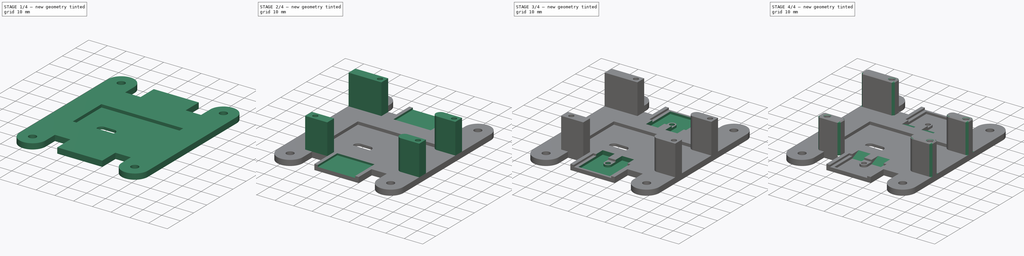
[diagram: build sequence overview — one tinted view per stage of 4, left to right]
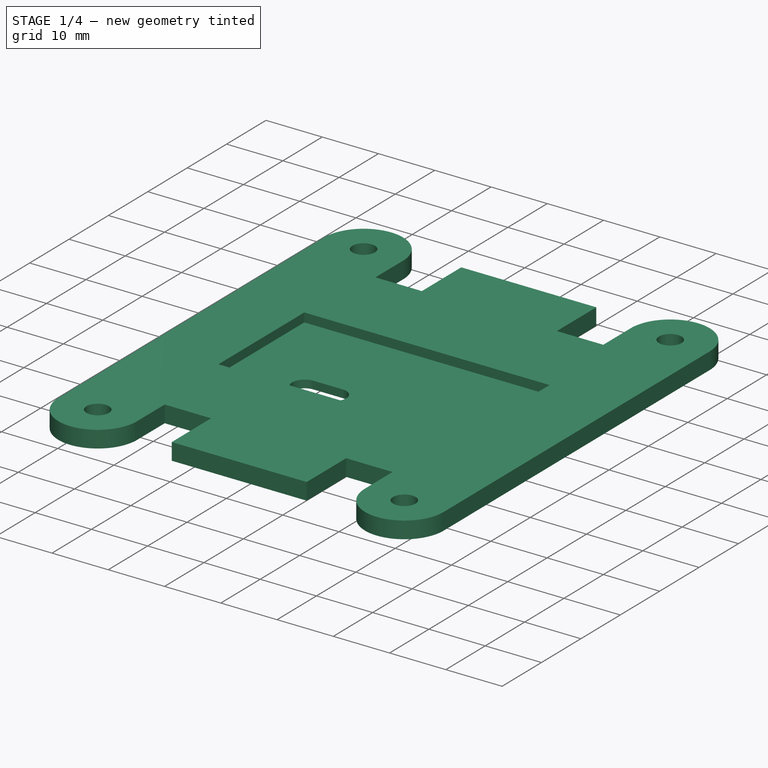
[diagram: stage 1 of 4 — iso view after this stage's code; geometry added in this stage tinted green]
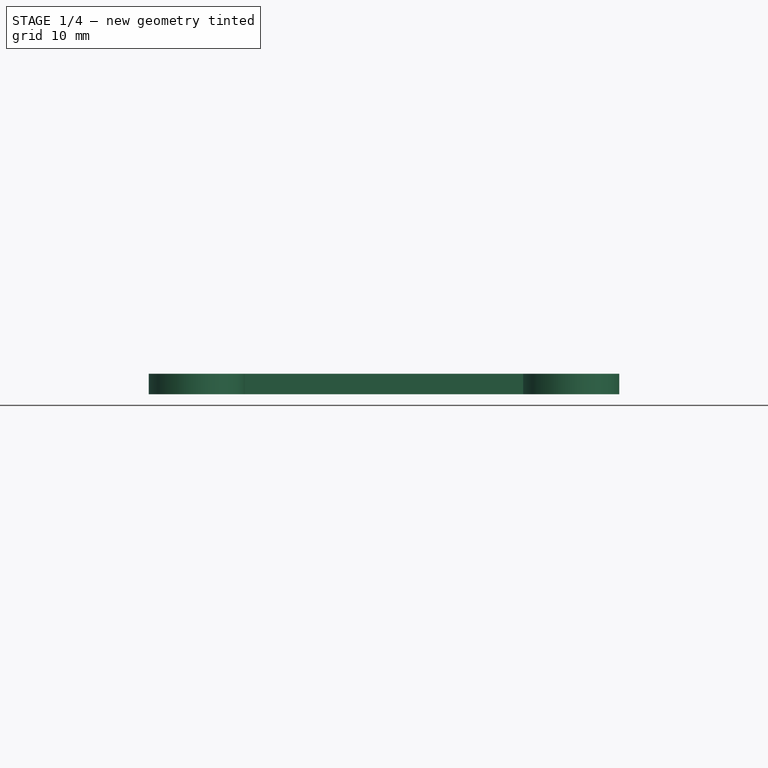
[diagram: stage 1 of 4 — front view after this stage's code; geometry added in this stage tinted green]
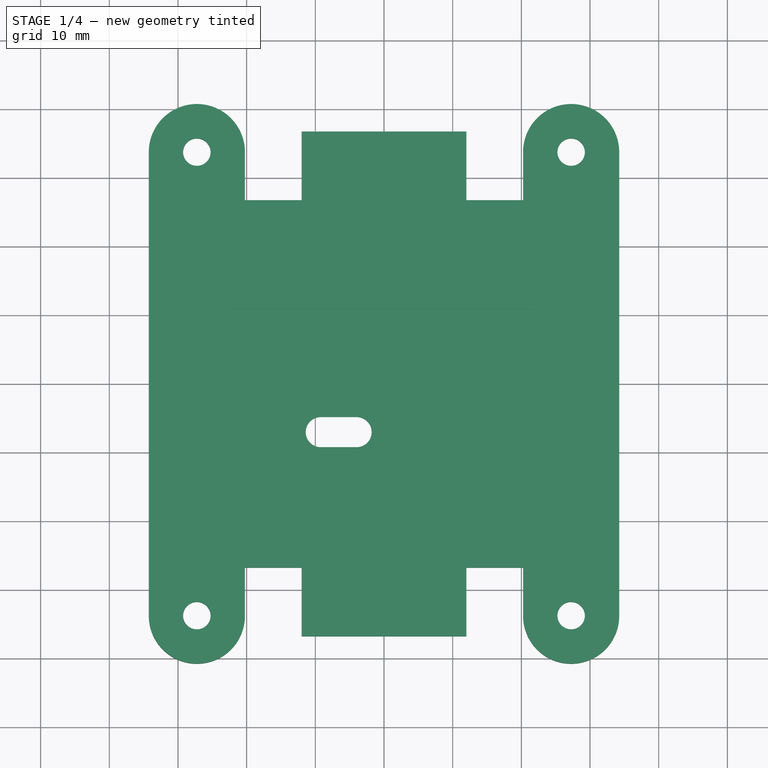
[diagram: stage 1 of 4 — top view after this stage's code; geometry added in this stage tinted green]
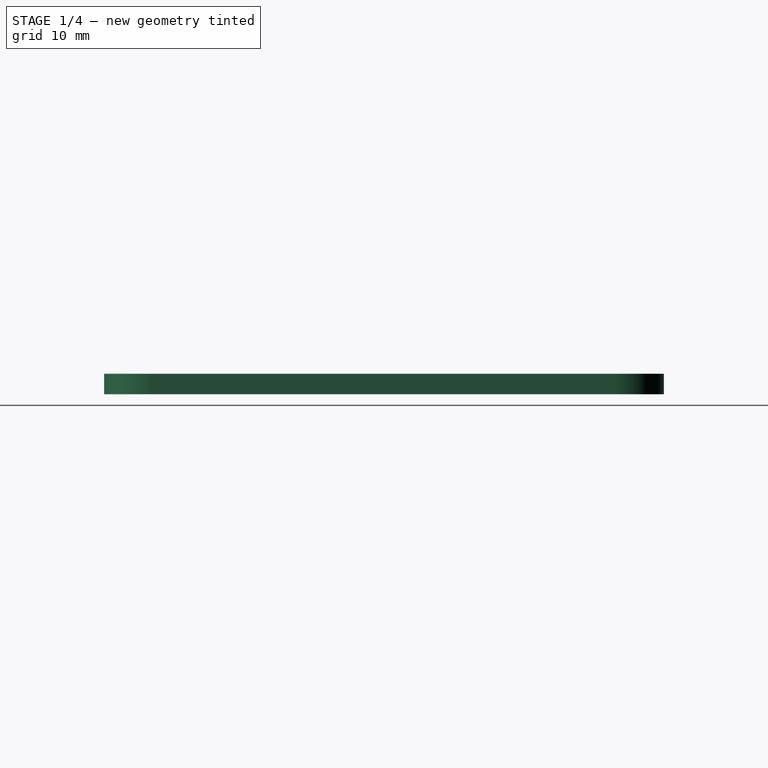
[diagram: stage 1 of 4 — right view after this stage's code; geometry added in this stage tinted green]
FCSTD DOCUMENT  (FreeCAD 0.20R29177 (Git))
Label: _ControllerMount
License: Creative Commons Attribution
LicenseURL: http://creativecommons.org/licenses/by/4.0/
objects: Part::Feature×20, Sketcher::SketchObject×8, App::Part×7, PartDesign::Pocket×5, PartDesign::Chamfer×3, PartDesign::Pad×2, PartDesign::Hole×1, PartDesign::Body×1
note: 51 computed .brp shape members not serialized (recipe doc carries the construction recipe); baked Part::Feature solids carry a one-line shape summary decoded from their .brp

FEATURE [Part::Feature] Part__Feature  label="RawPCB"
  shape: bbox 43.25 x 1.35 x 21.75 mm, 12 faces (baked)
FEATURE [Part::Feature] Part__Feature001  label="PADZ"
  shape: bbox 42.75 x 0.01 x 21.25 mm, 36 faces, 6 solids (baked)
FEATURE [Part::Feature] Part__Feature002  label="PADZ(Mirror)"
  Placement = pos=(0,1.35,0) rot=(1,0,0;3.14159rad)
  shape: bbox 42.75 x 0.01 x 21.25 mm, 36 faces, 6 solids (baked)
FEATURE [Part::Feature] Part__Feature003  label="ScreenPrint"
  shape: bbox 42.64 x 0.01 x 15.24 mm, 178 faces, 14 solids (baked)
FEATURE [App::Part] BarePCB
  Group = -> [Part__Feature,Part__Feature001,Part__Feature002,Part__Feature003]
  Origin = -> Origin001
FEATURE [Part::Feature] Part__Feature004  label="Base"
  Placement = pos=(32.125,0,-0.875) rot=(0,0,1;0rad)
  shape: bbox 8.25 x 1 x 8.25 mm, 8 faces (baked)
FEATURE [Part::Feature] Part__Feature005  label="Can"
  Placement = pos=(32.125,0,-0.875) rot=(0,0,1;0rad)
  shape: bbox 8.859 x 9.25 x 8.859 mm, 6 faces (baked)
FEATURE [App::Part] ElectrolyticCap
  Group = -> [Part__Feature004,Part__Feature005]
  Origin = -> Origin002
FEATURE [Part::Feature] Part__Feature006  label="Inductor"
  Placement = pos=(5.65,-0.2,-0.6) rot=(0,0,1;0rad)
  shape: bbox 12.66 x 7.316 x 12.66 mm, 49 faces (baked)
FEATURE [Part::Feature] Part__Feature007  label="Body001"
  shape: bbox 9.6 x 9.8 x 4.8 mm, 26 faces (baked)
FEATURE [Part::Feature] Part__Feature008  label="Screw"
  shape: bbox 2.25 x 1.5 x 2.25 mm, 7 faces (baked)
FEATURE [App::Part] TrimPot
  Group = -> [Part__Feature007,Part__Feature008]
  Origin = -> Origin003
FEATURE [Part::Feature] Part__Feature009  label="Body (1)"
  Placement = pos=(-4e-16,0,-3.25) rot=(0,0,1;0rad)
  shape: bbox 10 x 4.5 x 9 mm, 6 faces (baked)
FEATURE [Part::Feature] Part__Feature010  label="ThermTab"
  Placement = pos=(-4e-16,0,-3.25) rot=(0,0,1;0rad)
  shape: bbox 10 x 1.5 x 2 mm, 8 faces (baked)
FEATURE [Part::Feature] Part__Feature011  label="Pin"
  shape: bbox 0.8 x 2.5 x 5 mm, 14 faces (baked)
FEATURE [Part::Feature] Part__Feature012  label="Pin001"
  Placement = pos=(2,0,0) rot=(0,0,1;0rad)
  shape: bbox 0.8 x 2.5 x 5 mm, 14 faces (baked)
FEATURE [Part::Feature] Part__Feature013  label="Pin002"
  Placement = pos=(4,0,0) rot=(0,0,1;0rad)
  shape: bbox 0.8 x 2.5 x 5 mm, 14 faces (baked)
FEATURE [Part::Feature] Part__Feature014  label="Pin003"
  Placement = pos=(6,0,0) rot=(0,0,1;0rad)
  shape: bbox 0.8 x 2.5 x 5 mm, 14 faces (baked)
FEATURE [Part::Feature] Part__Feature015  label="Pin004"
  Placement = pos=(8,0,0) rot=(0,0,1;0rad)
  shape: bbox 0.8 x 2.5 x 5 mm, 14 faces (baked)
FEATURE [App::Part] Pins
  Group = -> [Part__Feature011,Part__Feature012,Part__Feature013,Part__Feature014,Part__Feature015]
  Origin = -> Origin004
  Placement = pos=(0.6,0,-3.25) rot=(0,0,1;0rad)
FEATURE [App::Part] Regulator
  Group = -> [Part__Feature009,Part__Feature010,Pins]
  Origin = -> Origin005
FEATURE [Part::Feature] Part__Feature016  label="Diode"
  Placement = pos=(5.35606,0,-0.85) rot=(0,0,1;0rad)
  shape: bbox 4.8 x 2 x 2.7 mm, 18 faces, 3 solids (baked)
FEATURE [Part::Feature] Part__Feature017  label="Base001"
  Placement = pos=(-1.875,-1.35,-0.875) rot=(0,0,1;0rad)
  shape: bbox 8.25 x 1 x 8.25 mm, 8 faces (baked)
FEATURE [Part::Feature] Part__Feature018  label="Can001"
  Placement = pos=(-1.875,-1.35,-0.875) rot=(0,0,1;0rad)
  shape: bbox 8.859 x 9.25 x 8.859 mm, 6 faces (baked)
FEATURE [App::Part] ElectrolyticCap001
  Group = -> [Part__Feature017,Part__Feature018]
  Origin = -> Origin006
  Placement = pos=(1,1.35,0) rot=(0,0,1;0rad)
FEATURE [App::Part] LM2596DCDC_v4  label="LM2596DCDC v4"
  Group = -> [BarePCB,ElectrolyticCap,Part__Feature006,TrimPot,Regulator,Part__Feature016,ElectrolyticCap001]
  Origin = -> Origin007
  Placement = pos=(21.625,10.875,2) rot=(0,0.707107,0.707107;3.14159rad)
FEATURE [Part::Feature] Compound005  label="Arduino UNO Rev.3 (CH340)"
  Placement = pos=(-40.75,28.95,21) rot=(0,0,1;0rad)
  shape: bbox 75.01 x 53.3 x 16.22 mm, 5010 faces, 46 solids (baked)
FEATURE [Sketcher::SketchObject] Sketch
  FullyConstrained = true
  MapMode = 5
  Support = -> [XY_Plane]
  sketch-geometry (24):
    g0: LineSegment StartX=-20.25 StartY=26.75 StartZ=0 EndX=-12 EndY=26.75 EndZ=0
    g1: LineSegment StartX=34.25 StartY=33.75 StartZ=0 EndX=34.25 EndY=-33.75 EndZ=0
    g2: LineSegment StartX=20.25 StartY=-26.75 StartZ=0 EndX=12 EndY=-26.75 EndZ=0
    g3: LineSegment StartX=-34.25 StartY=-33.75 StartZ=0 EndX=-34.25 EndY=33.75 EndZ=0
    g4: ArcOfCircle CenterX=-27.25 CenterY=33.75 CenterZ=0 NormalX=0 NormalY=0 NormalZ=1 AngleXU=0 Radius=7 StartAngle=0 EndAngle=3.14159
    g5: ArcOfCircle CenterX=27.25 CenterY=33.75 CenterZ=0 NormalX=0 NormalY=0 NormalZ=1 AngleXU=0 Radius=7 StartAngle=2e-16 EndAngle=3.14159
    g6: ArcOfCircle CenterX=-27.25 CenterY=-33.75 CenterZ=0 NormalX=0 NormalY=0 NormalZ=1 AngleXU=0 Radius=7 StartAngle=3.14159 EndAngle=6.28319
    g7: ArcOfCircle CenterX=27.25 CenterY=-33.75 CenterZ=0 NormalX=0 NormalY=0 NormalZ=1 AngleXU=0 Radius=7 StartAngle=3.14159 EndAngle=6.28319
    g8: LineSegment StartX=-20.25 StartY=33.75 StartZ=0 EndX=-20.25 EndY=26.75 EndZ=0
    g9: LineSegment StartX=20.25 StartY=33.75 StartZ=0 EndX=20.25 EndY=26.75 EndZ=0
    g10: LineSegment StartX=20.25 StartY=-33.75 StartZ=0 EndX=20.25 EndY=-26.75 EndZ=0
    g11: LineSegment StartX=-20.25 StartY=-33.75 StartZ=0 EndX=-20.25 EndY=-26.75 EndZ=0
    g12: Circle CenterX=-27.25 CenterY=33.75 CenterZ=0 NormalX=0 NormalY=0 NormalZ=1 AngleXU=0 Radius=2
    g13: Circle CenterX=27.25 CenterY=33.75 CenterZ=0 NormalX=0 NormalY=0 NormalZ=1 AngleXU=0 Radius=2
    g14: Circle CenterX=27.25 CenterY=-33.75 CenterZ=0 NormalX=0 NormalY=0 NormalZ=1 AngleXU=0 Radius=2
    g15: Circle CenterX=-27.25 CenterY=-33.75 CenterZ=0 NormalX=0 NormalY=0 NormalZ=1 AngleXU=0 Radius=2
    g16: LineSegment StartX=-12 StartY=-26.75 StartZ=0 EndX=-12 EndY=-36.75 EndZ=0
    g17: LineSegment StartX=-12 StartY=-36.75 StartZ=0 EndX=12 EndY=-36.75 EndZ=0
    g18: LineSegment StartX=12 StartY=-36.75 StartZ=0 EndX=12 EndY=-26.75 EndZ=0
    g19: LineSegment StartX=-12 StartY=-26.75 StartZ=0 EndX=-20.25 EndY=-26.75 EndZ=0
    g20: LineSegment StartX=-12 StartY=26.75 StartZ=0 EndX=-12 EndY=36.75 EndZ=0
    g21: LineSegment StartX=-12 StartY=36.75 StartZ=0 EndX=12 EndY=36.75 EndZ=0
    g22: LineSegment StartX=12 StartY=36.75 StartZ=0 EndX=12 EndY=26.75 EndZ=0
    g23: LineSegment StartX=12 StartY=26.75 StartZ=0 EndX=20.25 EndY=26.75 EndZ=0
  constraints (63):
    c: Horizontal(g0)
    c: Horizontal(g2)
    c: Vertical(g1)
    c: Vertical(g3)
    c: DistanceX(g3,g1) = 68.5
    c: Equal(g4,g5)
    c: Equal(g5,g7)
    c: Equal(g7,g6)
    c: Vertical(g8)
    c: Vertical(g9)
    c: Vertical(g10)
    c: Vertical(g11)
    c: Coincident(g0,g8)
    c: Tangent(g4,g3) = 1.5708
    c: Coincident(g23,g9)
    c: Tangent(g5,g1) = 1.5708
    c: Coincident(g2,g10)
    c: Tangent(g7,g1) = 1.5708
    c: Coincident(g19,g11)
    c: Tangent(g6,g3) = 1.5708
    c: DistanceY(g19,g0) = 53.5
    c: Tangent(g7,g10) = 1.5708
    c: Tangent(g6,g11) = -1.5708
    c: Tangent(g5,g9) = -1.5708
    c: Tangent(g4,g8) = 1.5708
    c: Tangent(g2,g7)
    c: Tangent(g6,g2)
    c: Tangent(g4,g0)
    c: Tangent(g0,g5)
    c: Symmetric(g6,g5,g-1)
    c: Radius(g7) = 7
    c: Coincident(g12,g4)
    c: Coincident(g13,g5)
    c: Coincident(g14,g7)
    c: Coincident(g15,g6)
    c: Equal(g12,g13)
    c: Equal(g13,g14)
    c: Equal(g14,g15)
    c: Diameter(g14) = 4
    c: Vertical(g16)
    c: Coincident(g16,g17)
    c: Horizontal(g17)
    c: Coincident(g17,g18)
    c: Vertical(g18)
    c: Coincident(g2,g18)
    c: Coincident(g19,g16)
    c: Equal(g19,g2)
    c: DistanceX(g17,g17) = 24
    c: DistanceY(g16,g16) = 10
    c: Horizontal(g19)
    c: Equal(g11,g10)
    c: Vertical(g20)
    c: Coincident(g20,g21)
    c: Horizontal(g21)
    c: Coincident(g21,g22)
    c: Vertical(g22)
    c: Coincident(g0,g20)
    c: Coincident(g23,g22)
    c: Equal(g0,g23)
    c: Equal(g21,g17)
    c: Equal(g16,g22)
    c: Equal(g22,g20)
    c: Horizontal(g23)
FEATURE [PartDesign::Pad] Pad
  Direction = (0,0,1)
  Length = 3
  Length2 = 10
  Profile = -> Sketch
  ReferenceAxis = -> Sketch [N_Axis]
  Type = 0
FEATURE [Sketcher::SketchObject] Sketch001
  AttachmentOffset = pos=(0,0,3) rot=(0,0,1;0rad)
  FullyConstrained = true
  MapMode = 5
  Placement = pos=(0,0,3) rot=(0,0,1;0rad)
  Support = -> [XY_Plane]
  expr: .AttachmentOffset.Base.z = Pad.Length
  sketch-geometry (4):
    g0: LineSegment StartX=-21.8 StartY=10.9 StartZ=0 EndX=21.8 EndY=10.9 EndZ=0
    g1: LineSegment StartX=21.8 StartY=10.9 StartZ=0 EndX=21.8 EndY=-10.9 EndZ=0
    g2: LineSegment StartX=21.8 StartY=-10.9 StartZ=0 EndX=-21.8 EndY=-10.9 EndZ=0
    g3: LineSegment StartX=-21.8 StartY=-10.9 StartZ=0 EndX=-21.8 EndY=10.9 EndZ=0
  constraints (11):
    c: Coincident(g0,g1)
    c: Coincident(g1,g2)
    c: Coincident(g2,g3)
    c: Coincident(g3,g0)
    c: Horizontal(g0)
    c: Horizontal(g2)
    c: Vertical(g1)
    c: Vertical(g3)
    c: DistanceX(g0,g0) = 43.6
    c: DistanceY(g3,g3) = 21.8
    c: Symmetric(g2,g0,g-1)
FEATURE [PartDesign::Pocket] Pocket
  BaseFeature = -> Pad
  Direction = (0,0,-1)
  Length = 1.6
  Length2 = 5
  Profile = -> Sketch001
  ReferenceAxis = -> Sketch001 [N_Axis]
  Type = 0
FEATURE [Sketcher::SketchObject] Sketch002
  AttachmentOffset = pos=(0,0,1.4) rot=(0,0,1;0rad)
  FullyConstrained = true
  MapMode = 5
  Placement = pos=(0,0,1.4) rot=(0,0,1;0rad)
  Support = -> [XY_Plane]
  expr: .AttachmentOffset.Base.z = Pad.Length - Pocket.Length
  sketch-geometry (4):
    g0: ArcOfCircle CenterX=-9.2 CenterY=-7 CenterZ=0 NormalX=0 NormalY=0 NormalZ=1 AngleXU=0 Radius=2.2 StartAngle=1.5708 EndAngle=4.71239
    g1: ArcOfCircle CenterX=-4 CenterY=-7 CenterZ=0 NormalX=0 NormalY=0 NormalZ=1 AngleXU=0 Radius=2.2 StartAngle=4.71239 EndAngle=7.85398
    g2: LineSegment StartX=-9.2 StartY=-9.2 StartZ=0 EndX=-4 EndY=-9.2 EndZ=0
    g3: LineSegment StartX=-4 StartY=-4.8 StartZ=0 EndX=-9.2 EndY=-4.8 EndZ=0
  constraints (10):
    c: Tangent(g0,g2) = -1.5708
    c: Tangent(g2,g1) = -1.5708
    c: Tangent(g1,g3) = -1.5708
    c: Tangent(g3,g0) = -1.5708
    c: Equal(g0,g1)
    c: Horizontal(g2)
    c: DistanceY(g0,g0) = 4.4
    c: DistanceY(g1,g-1) = 7
    c: DistanceX(g3,g3) = 5.2
    c: DistanceX(g1,g-1) = 4
FEATURE [PartDesign::Pocket] Pocket001
  BaseFeature = -> Pocket
  Direction = (0,0,-1)
  Length = 1.4
  Length2 = 5
  Profile = -> Sketch002
  ReferenceAxis = -> Sketch002 [N_Axis]
  Type = 1
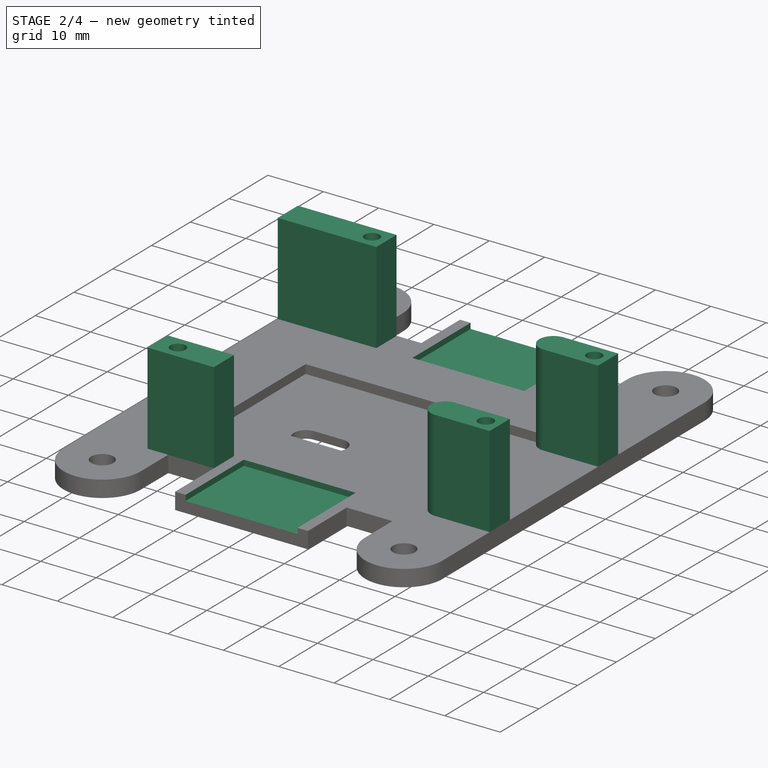
[diagram: stage 2 of 4 — iso view after this stage's code; geometry added in this stage tinted green]
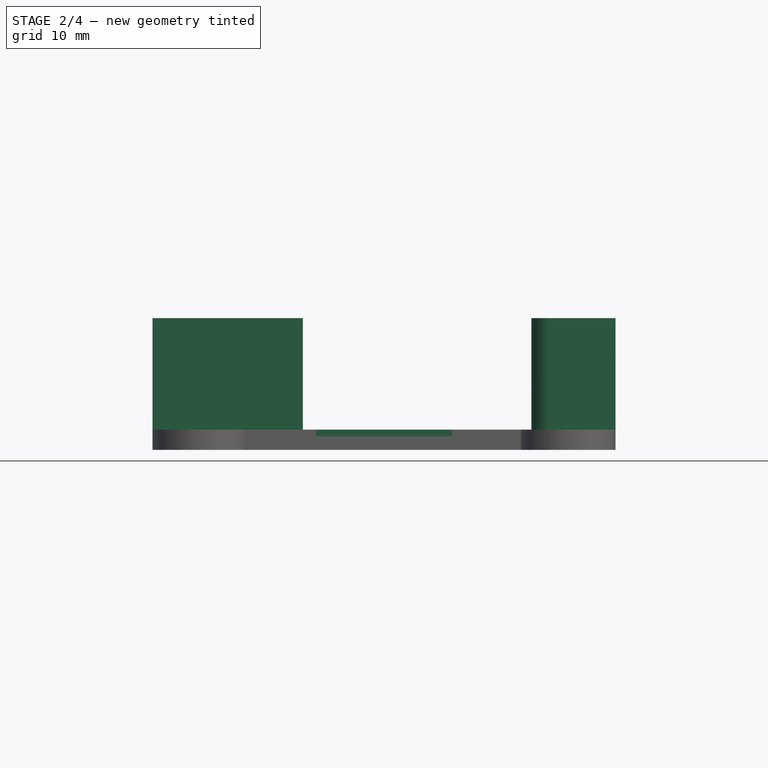
[diagram: stage 2 of 4 — front view after this stage's code; geometry added in this stage tinted green]
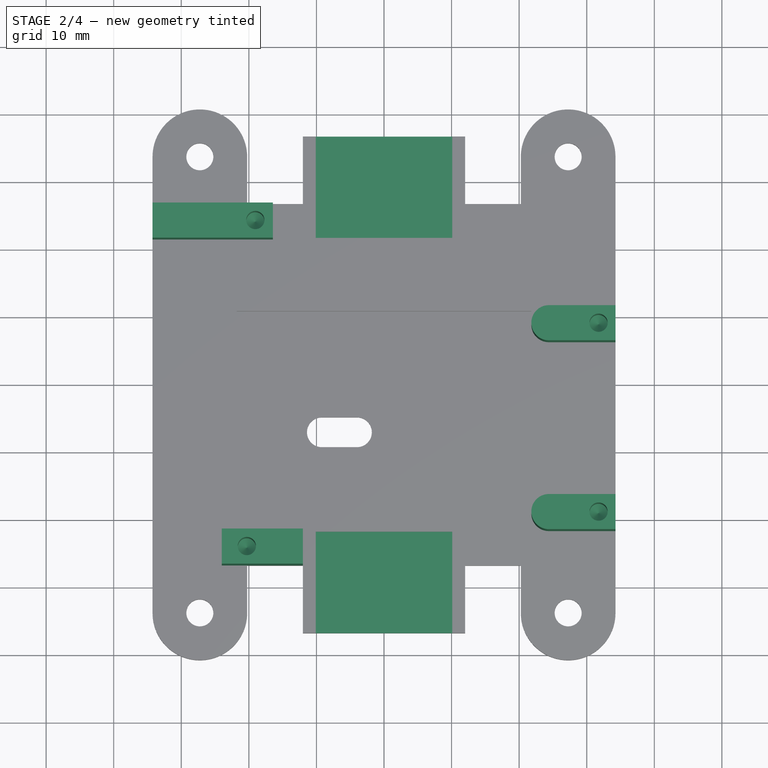
[diagram: stage 2 of 4 — top view after this stage's code; geometry added in this stage tinted green]
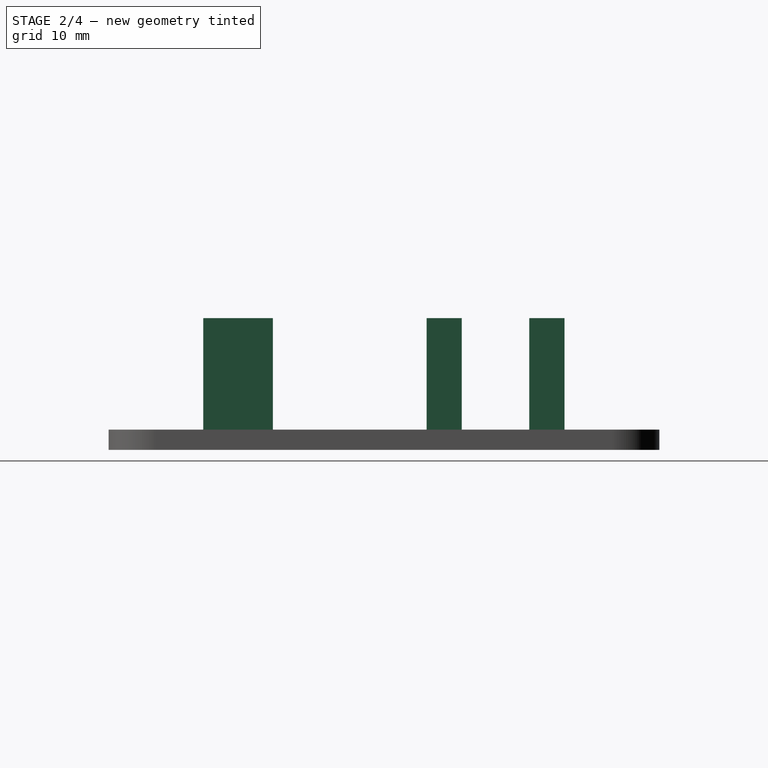
[diagram: stage 2 of 4 — right view after this stage's code; geometry added in this stage tinted green]
FEATURE [Sketcher::SketchObject] Sketch003
  AttachmentOffset = pos=(0,0,3) rot=(0,0,1;0rad)
  ExternalGeometry = -> [Sketch,Sketch001]
  FullyConstrained = true
  MapMode = 5
  Placement = pos=(0,0,3) rot=(0,0,1;0rad)
  Support = -> [XY_Plane]
  expr: .AttachmentOffset.Base.z = Pad.Length
  sketch-geometry (20):
    g0: Circle CenterX=-20.3 CenterY=-24.15 CenterZ=0 NormalX=0 NormalY=0 NormalZ=1 AngleXU=0 Radius=2.6
    g1: Circle CenterX=-19.04 CenterY=24.1 CenterZ=0 NormalX=0 NormalY=0 NormalZ=1 AngleXU=0 Radius=2.6
    g2: Circle CenterX=31.75 CenterY=8.9 CenterZ=0 NormalX=0 NormalY=0 NormalZ=1 AngleXU=0 Radius=2.6
    g3: Circle CenterX=31.75 CenterY=-19.05 CenterZ=0 NormalX=0 NormalY=0 NormalZ=1 AngleXU=0 Radius=2.6
    g4: LineSegment StartX=-12 StartY=-26.75 StartZ=0 EndX=-24 EndY=-26.75 EndZ=0
    g5: LineSegment StartX=-24 StartY=-26.75 StartZ=0 EndX=-24 EndY=-21.55 EndZ=0
    g6: LineSegment StartX=-24 StartY=-21.55 StartZ=0 EndX=-12 EndY=-21.55 EndZ=0
    g7: LineSegment StartX=-12 StartY=-21.55 StartZ=0 EndX=-12 EndY=-26.75 EndZ=0
    g8: LineSegment StartX=34.25 StartY=-16.45 StartZ=0 EndX=24.4 EndY=-16.45 EndZ=0
    g9: LineSegment StartX=24.4 StartY=-21.65 StartZ=0 EndX=34.25 EndY=-21.65 EndZ=0
    g10: LineSegment StartX=34.25 StartY=-21.65 StartZ=0 EndX=34.25 EndY=-16.45 EndZ=0
    g11: LineSegment StartX=-16.44 StartY=21.5 StartZ=0 EndX=-34.25 EndY=21.5 EndZ=0
    g12: LineSegment StartX=-34.25 StartY=21.5 StartZ=0 EndX=-34.25 EndY=26.7 EndZ=0
    g13: LineSegment StartX=-34.25 StartY=26.7 StartZ=0 EndX=-16.44 EndY=26.7 EndZ=0
    g14: LineSegment StartX=-16.44 StartY=26.7 StartZ=0 EndX=-16.44 EndY=21.5 EndZ=0
    g15: LineSegment StartX=34.25 StartY=11.5 StartZ=0 EndX=24.4 EndY=11.5 EndZ=0
    g16: LineSegment StartX=24.4 StartY=6.3 StartZ=0 EndX=34.25 EndY=6.3 EndZ=0
    g17: LineSegment StartX=34.25 StartY=6.3 StartZ=0 EndX=34.25 EndY=11.5 EndZ=0
    g18: ArcOfCircle CenterX=24.4 CenterY=-19.05 CenterZ=0 NormalX=0 NormalY=0 NormalZ=1 AngleXU=0 Radius=2.6 StartAngle=1.5708 EndAngle=4.71239
    g19: ArcOfCircle CenterX=24.4 CenterY=8.9 CenterZ=0 NormalX=0 NormalY=0 NormalZ=1 AngleXU=0 Radius=2.6 StartAngle=1.5708 EndAngle=4.71239
  constraints (57):
    c: Vertical(g3,g2)
    c: DistanceY(g3,g-1) = 19.05
    c: DistanceY(g-1,g2) = 8.9
    c: DistanceX(g-1,g3) = 31.75
    c: DistanceX(g1,g-1) = 19.04
    c: DistanceX(g0,g-1) = 20.3
    c: DistanceY(g0,g-1) = 24.15
    c: DistanceY(g-1,g1) = 24.1
    c: Equal(g1,g2)
    c: Equal(g2,g3)
    c: Equal(g3,g0)
    c: Diameter(g2) = 5.2
    c: Coincident(g4,g5)
    c: Coincident(g5,g6)
    c: Coincident(g6,g7)
    c: Coincident(g7,g4)
    c: Horizontal(g4)
    c: Horizontal(g6)
    c: Vertical(g5)
    c: Vertical(g7)
    c: Coincident(g9,g10)
    c: Coincident(g10,g8)
    c: Horizontal(g8)
    c: Horizontal(g9)
    c: Vertical(g10)
    c: Tangent(g6,g0)
    c: Tangent(g3,g9)
    c: Tangent(g8,g3)
    c: Coincident(g11,g12)
    c: Coincident(g12,g13)
    c: Coincident(g13,g14)
    c: Coincident(g14,g11)
    c: Horizontal(g11)
    c: Horizontal(g13)
    c: Vertical(g12)
    c: Vertical(g14)
    c: Coincident(g16,g17)
    c: Coincident(g17,g15)
    c: Horizontal(g15)
    c: Horizontal(g16)
    c: Vertical(g17)
    c: Tangent(g13,g1)
    c: Tangent(g11,g1)
    c: Tangent(g1,g14)
    c: Tangent(g2,g16)
    c: Tangent(g15,g2)
    c: DistanceX(g6,g6) = 12
    c: Tangent(g8,g18) = -1.5708
    c: Tangent(g9,g18) = -1.5708
    c: Tangent(g15,g19) = -1.5708
    c: Tangent(g16,g19) = -1.5708
    c: Tangent(g19,g-4)
    c: Tangent(g18,g-4)
    c: Coincident(g4,g-6)
    c: PointOnObject(g11,g-3)
    c: PointOnObject(g16,g-5)
    c: PointOnObject(g8,g-5)
FEATURE [PartDesign::Pad] Pad001
  BaseFeature = -> Pocket001
  Direction = (0,0,1)
  Length = 16.5
  Length2 = 10
  Profile = -> Sketch003
  ReferenceAxis = -> Sketch003 [N_Axis]
  Type = 0
FEATURE [Sketcher::SketchObject] Sketch004
  AttachmentOffset = pos=(0,0,19.5) rot=(0,0,1;0rad)
  FullyConstrained = true
  MapMode = 5
  Placement = pos=(0,0,19.5) rot=(0,0,1;0rad)
  Support = -> [XY_Plane]
  expr: .AttachmentOffset.Base.z = Pad.Length + Pad001.Length
  sketch-geometry (4):
    g0: Circle CenterX=-20.3 CenterY=-24.15 CenterZ=0 NormalX=0 NormalY=0 NormalZ=1 AngleXU=0 Radius=1.75
    g1: Circle CenterX=-19.04 CenterY=24.1 CenterZ=0 NormalX=0 NormalY=0 NormalZ=1 AngleXU=0 Radius=1.75
    g2: Circle CenterX=31.75 CenterY=8.9 CenterZ=0 NormalX=0 NormalY=0 NormalZ=1 AngleXU=0 Radius=1.75
    g3: Circle CenterX=31.75 CenterY=-19.05 CenterZ=0 NormalX=0 NormalY=0 NormalZ=1 AngleXU=0 Radius=1.75
  constraints (12):
    c: Vertical(g3,g2)
    c: DistanceY(g3,g-1) = 19.05
    c: DistanceY(g-1,g2) = 8.9
    c: DistanceX(g-1,g3) = 31.75
    c: DistanceX(g1,g-1) = 19.04
    c: DistanceX(g0,g-1) = 20.3
    c: DistanceY(g0,g-1) = 24.15
    c: DistanceY(g-1,g1) = 24.1
    c: Equal(g1,g2)
    c: Equal(g2,g3)
    c: Equal(g3,g0)
    c: Diameter(g2) = 3.5
FEATURE [PartDesign::Hole] Hole
  BaseFeature = -> Pad001
  CustomThreadClearance = 0
  Depth = 12
  DepthType = 0
  Diameter = 2.7
  DrillForDepth = false
  DrillPoint = 1
  DrillPointAngle = 90
  HoleCutCountersinkAngle = 90
  HoleCutCustomValues = false
  HoleCutDepth = 0
  HoleCutDiameter = 6.1
  HoleCutType = 0
  ModelThread = false
  Profile = -> Sketch004
  Tapered = false
  TaperedAngle = 90
  ThreadClass = 0
  ThreadDepth = 12
  ThreadDepthType = 0
  ThreadDirection = 0
  ThreadFit = 0
  ThreadSize = 0
  ThreadType = 0
  Threaded = false
  UseCustomThreadClearance = false
FEATURE [Sketcher::SketchObject] Sketch005
  AttachmentOffset = pos=(0,0,3) rot=(0,0,1;0rad)
  ExternalGeometry = -> [Sketch]
  FullyConstrained = true
  MapMode = 5
  Placement = pos=(0,0,3) rot=(0,0,1;0rad)
  Support = -> [XY_Plane]
  expr: .AttachmentOffset.Base.z = Pad.Length
  sketch-geometry (16):
    g0: LineSegment StartX=-8.5 StartY=35.55 StartZ=0 EndX=8.5 EndY=35.55 EndZ=0
    g1: LineSegment StartX=8.5 StartY=35.55 StartZ=0 EndX=8.5 EndY=16.75 EndZ=0
    g2: LineSegment StartX=8.5 StartY=16.75 StartZ=0 EndX=2 EndY=16.75 EndZ=0
    g3: LineSegment StartX=-8.5 StartY=16.75 StartZ=0 EndX=-8.5 EndY=35.55 EndZ=0
    g4: LineSegment StartX=-8.5 StartY=-35.55 StartZ=0 EndX=8.5 EndY=-35.55 EndZ=0
    g5: LineSegment StartX=8.5 StartY=-35.55 StartZ=0 EndX=8.5 EndY=-16.75 EndZ=0
    g6: LineSegment StartX=8.5 StartY=-16.75 StartZ=0 EndX=2 EndY=-16.75 EndZ=0
    g7: LineSegment StartX=-8.5 StartY=-16.75 StartZ=0 EndX=-8.5 EndY=-35.55 EndZ=0
    g8: LineSegment StartX=-2 StartY=16.75 StartZ=0 EndX=-2 EndY=24.75 EndZ=0
    g9: LineSegment StartX=2 StartY=24.75 StartZ=0 EndX=2 EndY=16.75 EndZ=0
    g10: ArcOfCircle CenterX=0 CenterY=24.75 CenterZ=0 NormalX=0 NormalY=0 NormalZ=1 AngleXU=0 Radius=2 StartAngle=-9e-16 EndAngle=3.14159
    g11: LineSegment StartX=-2 StartY=16.75 StartZ=0 EndX=-8.5 EndY=16.75 EndZ=0
    g12: LineSegment StartX=-2 StartY=-16.75 StartZ=0 EndX=-2 EndY=-24.75 EndZ=0
    g13: ArcOfCircle CenterX=0 CenterY=-24.75 CenterZ=0 NormalX=0 NormalY=0 NormalZ=1 AngleXU=0 Radius=2 StartAngle=3.14159 EndAngle=6.28319
    g14: LineSegment StartX=2 StartY=-24.75 StartZ=0 EndX=2 EndY=-16.75 EndZ=0
    g15: LineSegment StartX=-2 StartY=-16.75 StartZ=0 EndX=-8.5 EndY=-16.75 EndZ=0
  constraints (44):
    c: Coincident(g0,g1)
    c: Coincident(g1,g2)
    c: Coincident(g11,g3)
    c: Coincident(g3,g0)
    c: Horizontal(g0)
    c: Horizontal(g2)
    c: Vertical(g1)
    c: Vertical(g3)
    c: Coincident(g4,g5)
    c: Coincident(g5,g6)
    c: Coincident(g15,g7)
    c: Coincident(g7,g4)
    c: Horizontal(g4)
    c: Vertical(g5)
    c: Vertical(g7)
    c: Symmetric(g5,g15,g-2)
    c: Vertical(g15,g11)
    c: Vertical(g1,g5)
    c: DistanceX(g4,g4) = 17
    c: DistanceY(g-3,g15) = 20
    c: DistanceY(g-3,g4) = 1.2
    c: DistanceY(g0,g-4) = 1.2
    c: DistanceY(g11,g-4) = 20
    c: Vertical(g8)
    c: Vertical(g9)
    c: PointOnObject(g10,g-2)
    c: Tangent(g10,g9) = 1.5708
    c: Tangent(g10,g8) = 1.5708
    c: DistanceX(g8,g9) = 4
    c: Coincident(g2,g9)
    c: Coincident(g11,g8)
    c: Horizontal(g11)
    c: Equal(g1,g3)
    c: DistanceY(g10,g-4) = 12
    c: Vertical(g12)
    c: Tangent(g12,g13) = -1.5708
    c: Tangent(g13,g14) = -1.5708
    c: Vertical(g14)
    c: Coincident(g6,g14)
    c: Coincident(g15,g12)
    c: Equal(g10,g13)
    c: Symmetric(g13,g10,g-1)
    c: Horizontal(g15)
    c: Horizontal(g6)
FEATURE [Sketcher::SketchObject] Sketch006
  AttachmentOffset = pos=(0,0,3) rot=(0,0,1;0rad)
  ExternalGeometry = -> [Sketch]
  FullyConstrained = true
  MapMode = 5
  Placement = pos=(0,0,3) rot=(0,0,1;0rad)
  Support = -> [XY_Plane]
  expr: .AttachmentOffset.Base.z = Pad.Length
  sketch-geometry (8):
    g0: LineSegment StartX=-10.1 StartY=-36.75 StartZ=0 EndX=10.1 EndY=-36.75 EndZ=0
    g1: LineSegment StartX=10.1 StartY=-36.75 StartZ=0 EndX=10.1 EndY=-21.75 EndZ=0
    g2: LineSegment StartX=10.1 StartY=-21.75 StartZ=0 EndX=-10.1 EndY=-21.75 EndZ=0
    g3: LineSegment StartX=-10.1 StartY=-21.75 StartZ=0 EndX=-10.1 EndY=-36.75 EndZ=0
    g4: LineSegment StartX=-10.1 StartY=36.75 StartZ=0 EndX=10.1 EndY=36.75 EndZ=0
    g5: LineSegment StartX=10.1 StartY=36.75 StartZ=0 EndX=10.1 EndY=21.75 EndZ=0
    g6: LineSegment StartX=10.1 StartY=21.75 StartZ=0 EndX=-10.1 EndY=21.75 EndZ=0
    g7: LineSegment StartX=-10.1 StartY=21.75 StartZ=0 EndX=-10.1 EndY=36.75 EndZ=0
  constraints (23):
    c: Coincident(g0,g1)
    c: Coincident(g1,g2)
    c: Coincident(g2,g3)
    c: Coincident(g3,g0)
    c: Horizontal(g0)
    c: Vertical(g1)
    c: Vertical(g3)
    c: PointOnObject(g0,g-3)
    c: Coincident(g4,g5)
    c: Coincident(g5,g6)
    c: Coincident(g6,g7)
    c: Coincident(g7,g4)
    c: Horizontal(g4)
    c: Horizontal(g6)
    c: Vertical(g5)
    c: Vertical(g7)
    c: PointOnObject(g4,g-4)
    c: Symmetric(g2,g1,g-2)
    c: Vertical(g2,g6)
    c: Vertical(g5,g1)
    c: DistanceX(g0,g0) = 20.2
    c: DistanceY(g3,g3) = 15
    c: Equal(g5,g3)
FEATURE [PartDesign::Pocket] Pocket002
  BaseFeature = -> Hole
  Direction = (0,0,-1)
  Length = 1
  Length2 = 5
  Profile = -> Sketch006
  ReferenceAxis = -> Sketch006 [N_Axis]
  Type = 0
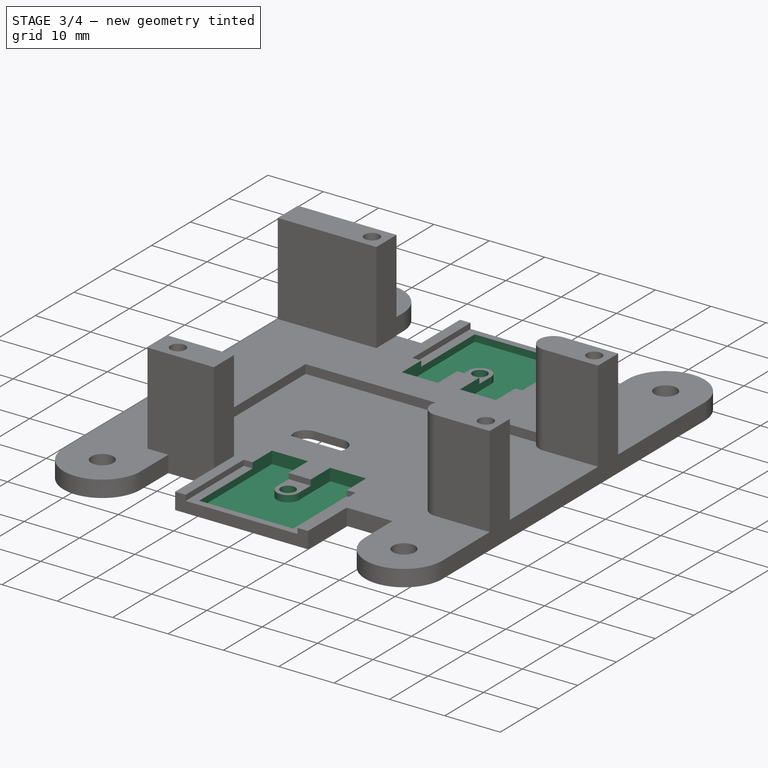
[diagram: stage 3 of 4 — iso view after this stage's code; geometry added in this stage tinted green]
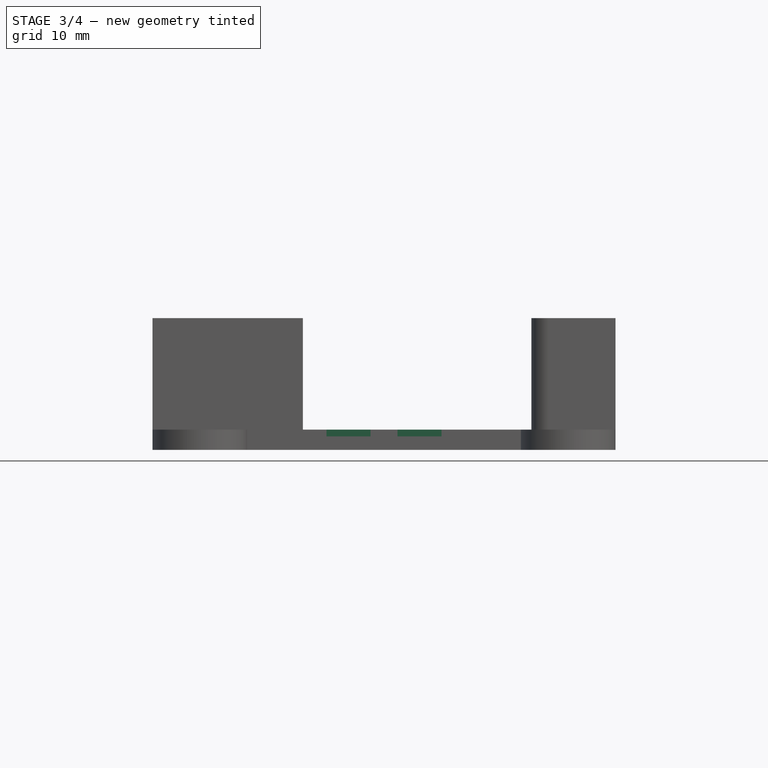
[diagram: stage 3 of 4 — front view after this stage's code; geometry added in this stage tinted green]
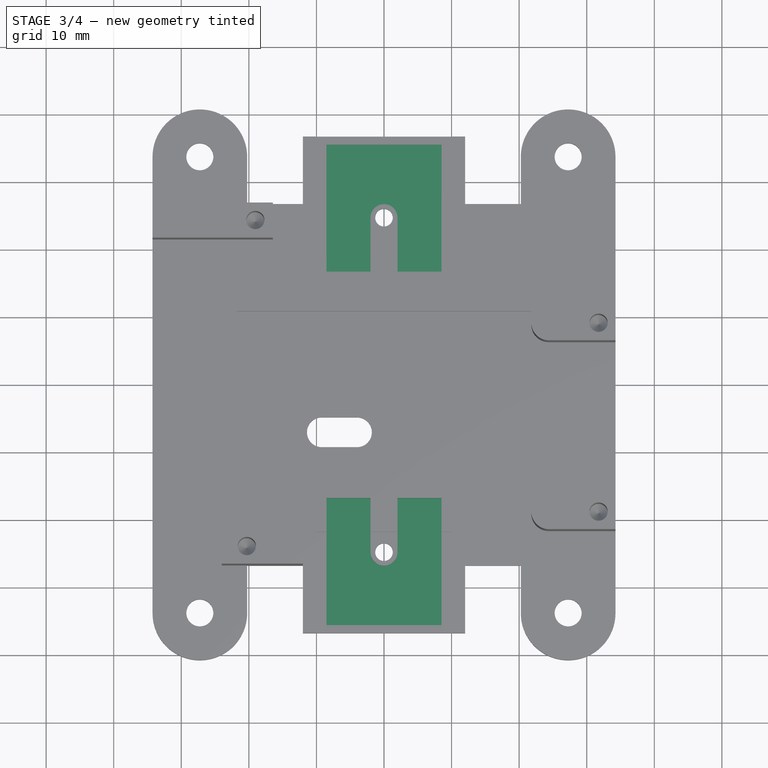
[diagram: stage 3 of 4 — top view after this stage's code; geometry added in this stage tinted green]
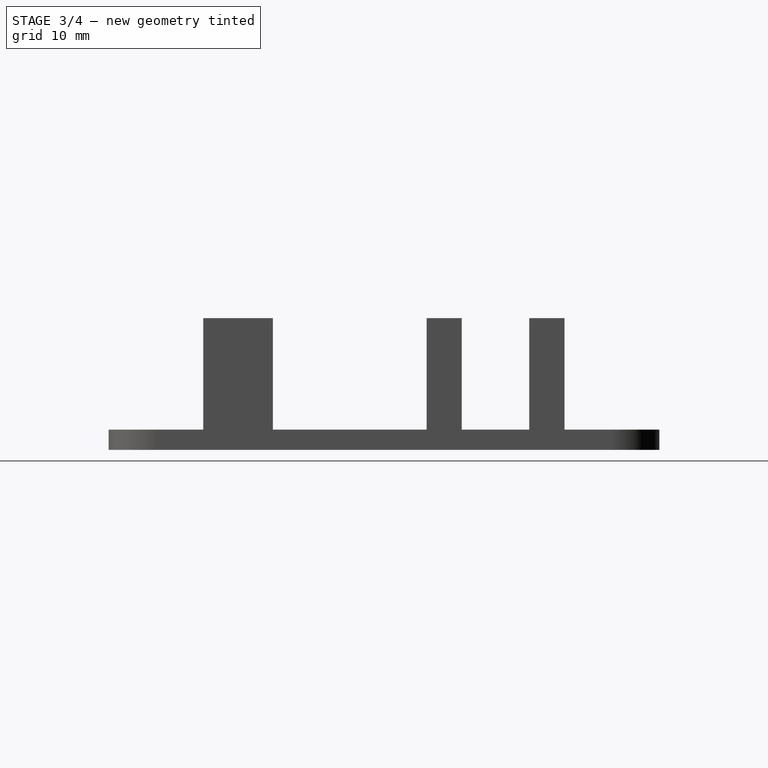
[diagram: stage 3 of 4 — right view after this stage's code; geometry added in this stage tinted green]
FEATURE [PartDesign::Pocket] Pocket003
  BaseFeature = -> Pocket002
  Direction = (0,0,-1)
  Length = 2.2
  Length2 = 5
  Profile = -> Sketch005
  ReferenceAxis = -> Sketch005 [N_Axis]
  Type = 0
  expr: Length = Pad.Length - 0.8mm
FEATURE [Sketcher::SketchObject] Sketch007
  AttachmentOffset = pos=(0,0,3) rot=(0,0,1;0rad)
  ExternalGeometry = -> [Sketch005]
  FullyConstrained = true
  MapMode = 5
  Placement = pos=(0,0,3) rot=(0,0,1;0rad)
  Support = -> [XY_Plane]
  expr: .AttachmentOffset.Base.z = Pad.Length
  sketch-geometry (2):
    g0: Circle CenterX=0 CenterY=24.75 CenterZ=0 NormalX=0 NormalY=0 NormalZ=1 AngleXU=0 Radius=1.3
    g1: Circle CenterX=0 CenterY=-24.75 CenterZ=0 NormalX=0 NormalY=0 NormalZ=1 AngleXU=0 Radius=1.3
  constraints (4):
    c: Coincident(g0,g-3)
    c: Coincident(g1,g-4)
    c: Equal(g1,g0)
    c: Diameter(g1) = 2.6
FEATURE [PartDesign::Pocket] Pocket004
  BaseFeature = -> Pocket003
  Direction = (0,0,-1)
  Length = 5
  Length2 = 5
  Profile = -> Sketch007
  ReferenceAxis = -> Sketch007 [N_Axis]
  Type = 1
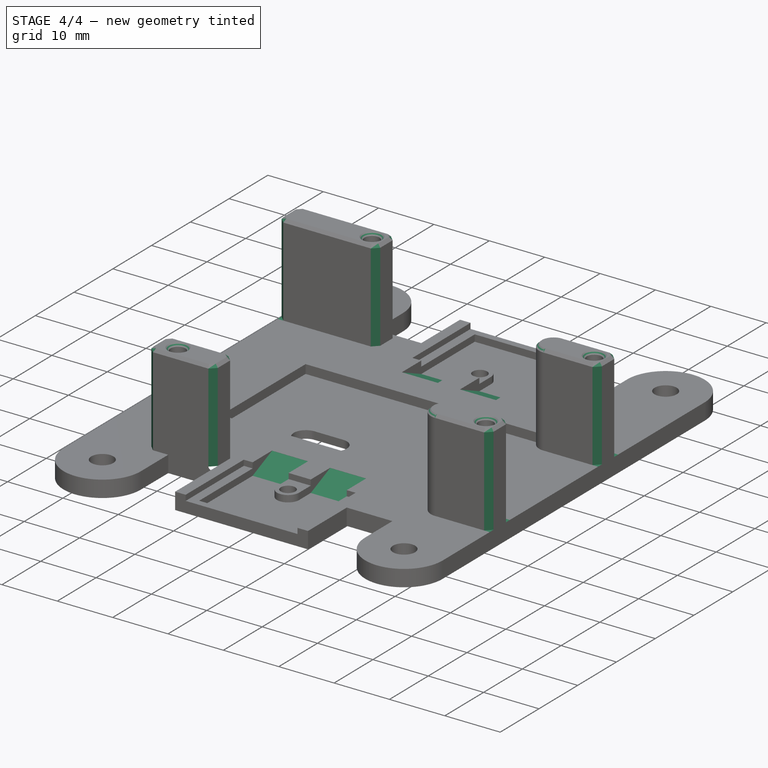
[diagram: stage 4 of 4 — iso view after this stage's code; geometry added in this stage tinted green]
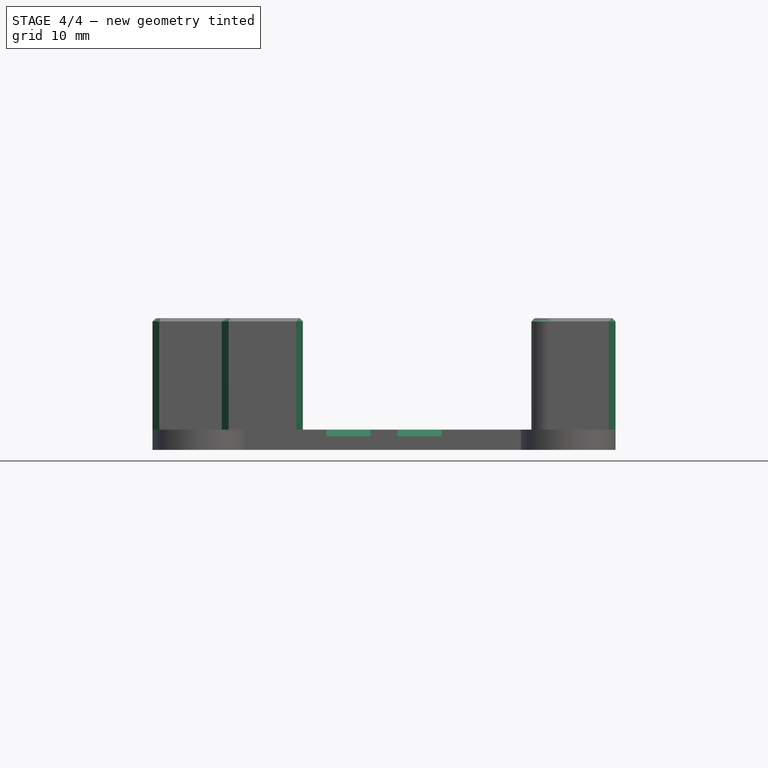
[diagram: stage 4 of 4 — front view after this stage's code; geometry added in this stage tinted green]
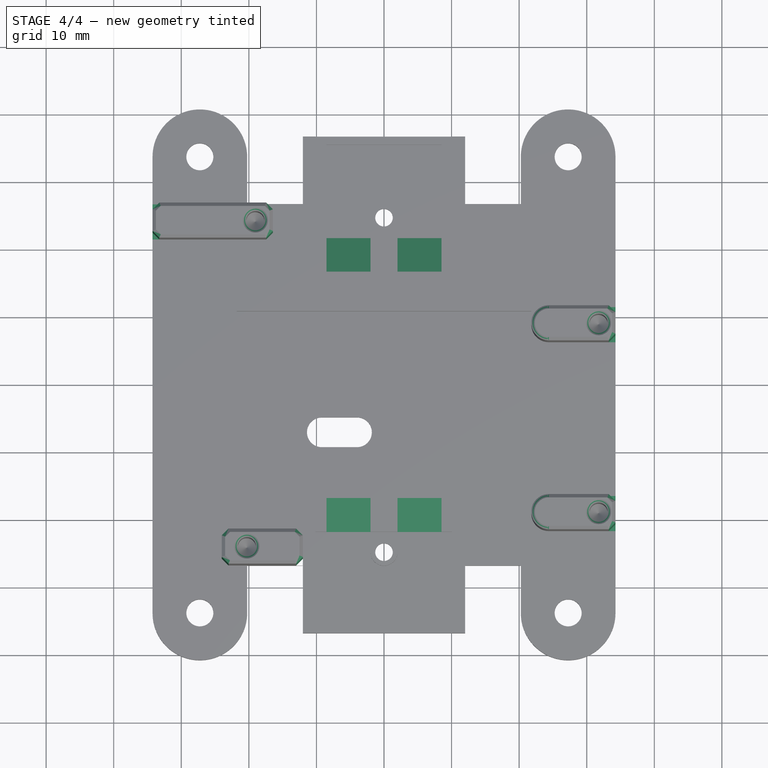
[diagram: stage 4 of 4 — top view after this stage's code; geometry added in this stage tinted green]
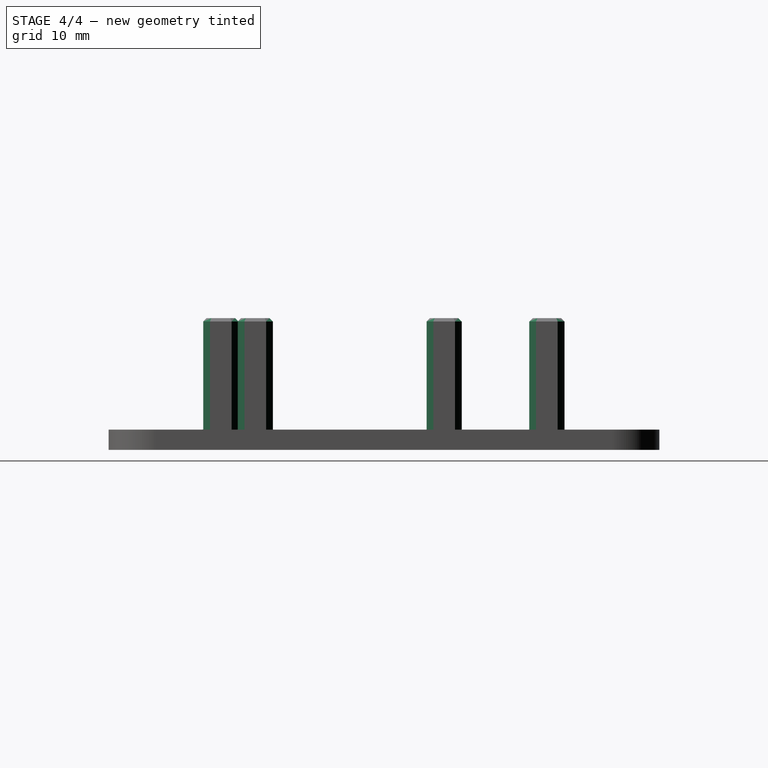
[diagram: stage 4 of 4 — right view after this stage's code; geometry added in this stage tinted green]
FEATURE [PartDesign::Chamfer] Chamfer
  Angle = 45
  Base = -> Pocket004 [Edge210,Edge198,Edge167,Edge155]
  BaseFeature = -> Pocket004
  ChamferType = 1
  FlipDirection = false
  Size = 2.18
  Size2 = 5
  SupportTransform = false
  UseAllEdges = false
FEATURE [PartDesign::Chamfer] Chamfer001
  Angle = 45
  Base = -> Chamfer [Edge145,Edge140,Edge138,Edge133,Edge215,Edge212,Edge213,Edge195,Edge196,Edge200,Edge217,Edge198]
  BaseFeature = -> Chamfer
  ChamferType = 0
  FlipDirection = false
  Size = 1
  Size2 = 1
  SupportTransform = false
  UseAllEdges = false
FEATURE [PartDesign::Chamfer] Chamfer002
  Angle = 45
  Base = -> Chamfer001 [Face95,Face99,Face81,Face79]
  BaseFeature = -> Chamfer001
  ChamferType = 0
  FlipDirection = false
  Size = 0.5
  Size2 = 1
  SupportTransform = false
  UseAllEdges = false
FEATURE [PartDesign::Body] Body  label="Bottom"
  Group = -> [Sketch,Pad,Sketch001,Pocket,Sketch002,Pocket001,Sketch003,Pad001,Sketch004,Hole,Sketch005,Sketch006,Pocket002,Pocket003,Sketch007,Pocket004,Chamfer,Chamfer001,Chamfer002]
  Origin = -> Origin
  Tip = -> Chamfer002
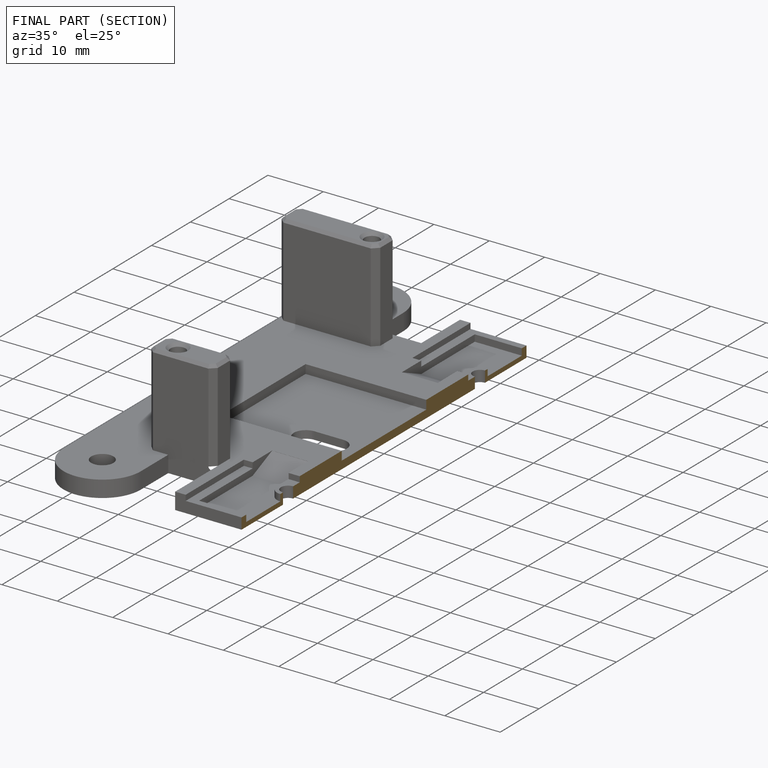
[diagram: finished part — half-section view (interior)]
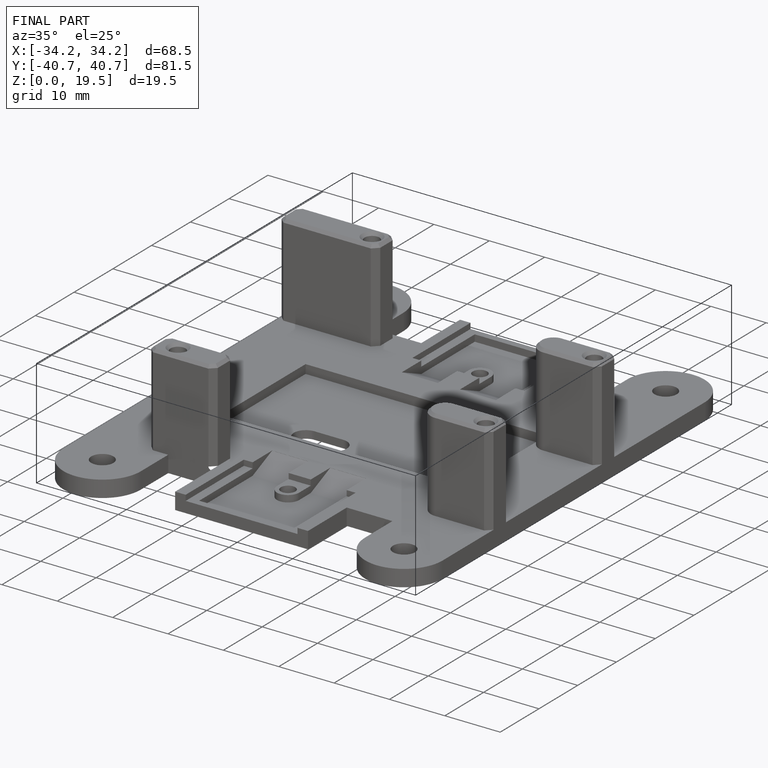
[diagram: finished part — iso view with bounding-box wireframe]
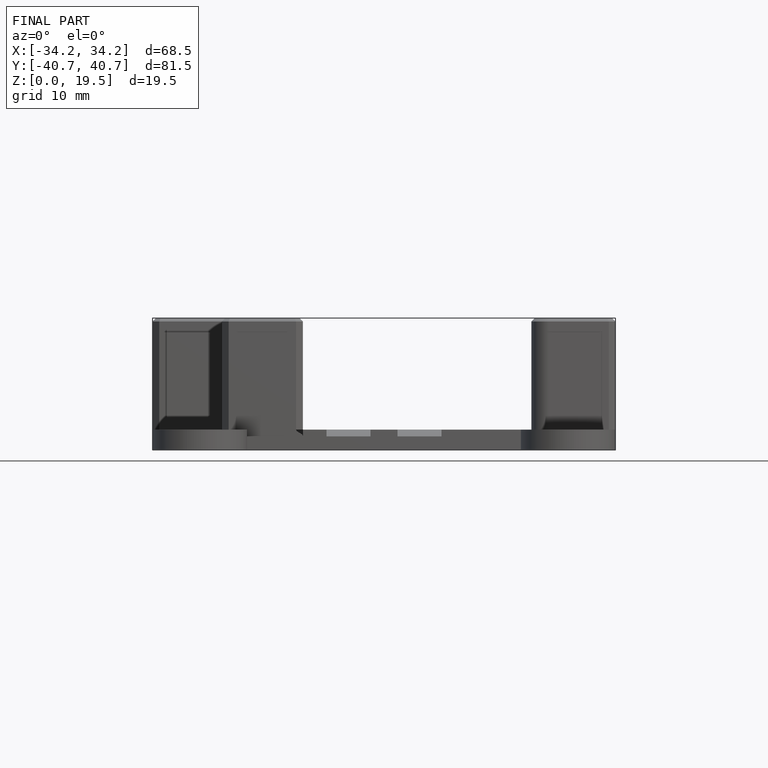
[diagram: finished part — front view with bounding-box wireframe]
